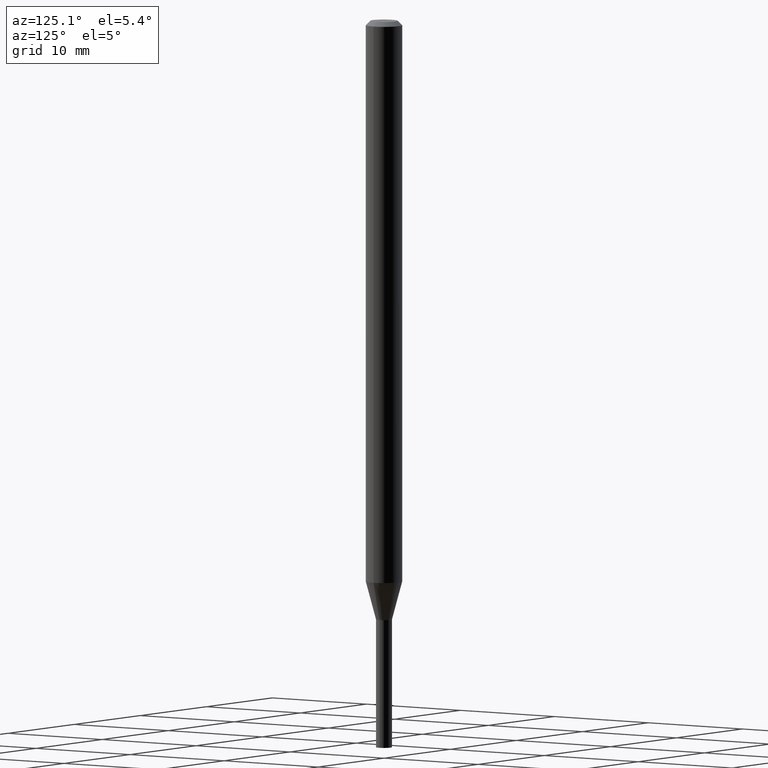
[diagram: clean part render]
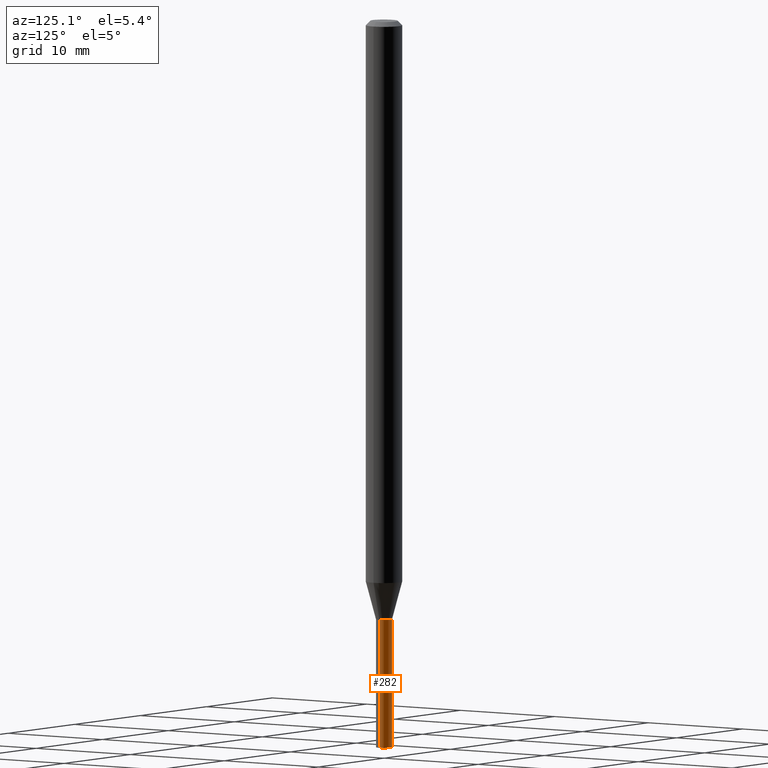
[diagram: same view with one face highlighted and labeled with its STEP entity id]
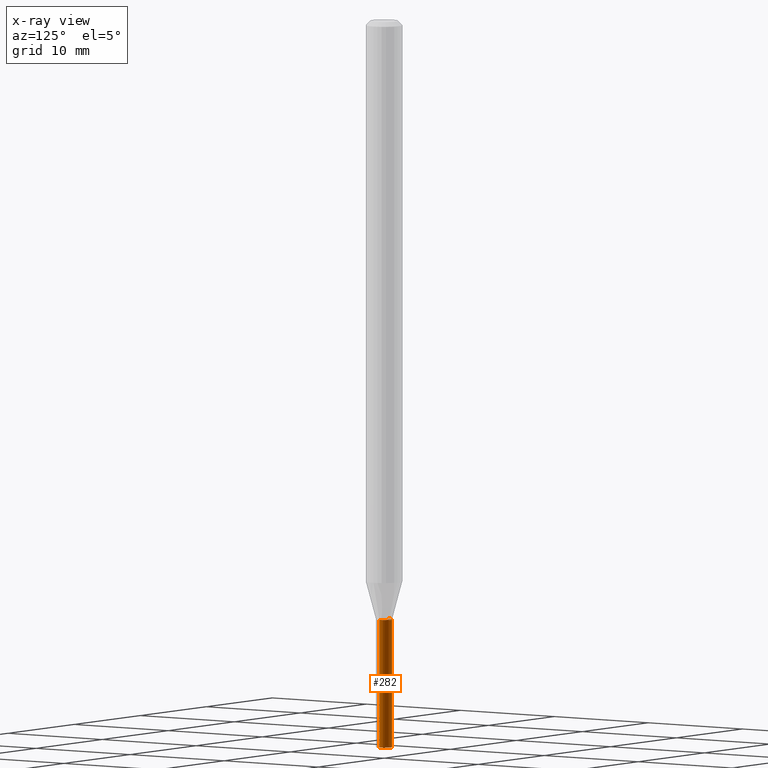
[diagram: x-ray of the same camera — body ghosted, the highlighted face saturated]
A machine part, auxiliary view. The second image highlights one B-rep face of the part: STEP entity #282.
The next image is the same camera in x-ray: the body ghosted, the highlighted face saturated — about 0% of this face is hidden behind the body in this view.
In plain terms, the highlighted cylindrical surface (edge-blend (fillet) strip) has radius 0.6985 mm, axis along (-0, 0, 1).
Its self-contained STEP definition (entity closure, byte-faithful):
#5 = EDGE_CURVE ( 'NONE', #119, #183, #333, .T. ) ;
#10 = CARTESIAN_POINT ( 'NONE',  ( 0.02750000000000000014, -1.920314736363723444E-16, 1.340948613343882413E-30 ) ) ;
#14 = CARTESIAN_POINT ( 'NONE',  ( -0.02750000000000000014, -7.765178200228343699E-15, -2.500000000000000000 ) ) ;
#22 = FACE_OUTER_BOUND ( 'NONE', #153, .T. ) ;
#32 = ORIENTED_EDGE ( 'NONE', *, *, #436, .F. ) ;
#44 = DIRECTION ( 'NONE',  ( -2.445468806185136877E-29, 3.491481338843145188E-15, 1.000000000000000000 ) ) ;
#52 = CARTESIAN_POINT ( 'NONE',  ( 0.02750000000000000014, -7.384483031653253552E-15, -2.060000000000000053 ) ) ;
#56 = EDGE_CURVE ( 'NONE', #393, #268, #355, .T. ) ;
#65 = DIRECTION ( 'NONE',  ( -2.445468806185136597E-29, 3.491481338843145583E-15, 1.000000000000000000 ) ) ;
#92 = CIRCLE ( 'NONE', #343, 0.02750000000000000014 ) ;
#119 = VERTEX_POINT ( 'NONE', #278 ) ;
#122 = ORIENTED_EDGE ( 'NONE', *, *, #449, .T. ) ;
#128 = CARTESIAN_POINT ( 'NONE',  ( 5.037665740741381905E-29, -7.192451558016880271E-15, -2.060000000000000053 ) ) ;
#147 = VECTOR ( 'NONE', #44, 39.37007874015748143 ) ;
#153 = EDGE_LOOP ( 'NONE', ( #122, #261, #32, #179 ) ) ;
#158 = CARTESIAN_POINT ( 'NONE',  ( -0.02750000000000000014, -7.765178200228343699E-15, -2.060000000000000053 ) ) ;
#179 = ORIENTED_EDGE ( 'NONE', *, *, #5, .F. ) ;
#183 = VERTEX_POINT ( 'NONE', #52 ) ;
#203 = DIRECTION ( 'NONE',  ( -2.445468806185136877E-29, 3.491481338843145188E-15, 1.000000000000000000 ) ) ;
#213 = DIRECTION ( 'NONE',  ( 1.000000000000000000, -6.982962677686244622E-15, 0.000000000000000000 ) ) ;
#224 = AXIS2_PLACEMENT_3D ( 'NONE', #444, #342, #276 ) ;
#255 = DIRECTION ( 'NONE',  ( -2.445468806185136597E-29, 3.491481338843145583E-15, 1.000000000000000000 ) ) ;
#261 = ORIENTED_EDGE ( 'NONE', *, *, #56, .T. ) ;
#268 = VERTEX_POINT ( 'NONE', #158 ) ;
#276 = DIRECTION ( 'NONE',  ( 1.000000000000000000, -6.982962677686266711E-15, 4.876176775795935793E-29 ) ) ;
#278 = CARTESIAN_POINT ( 'NONE',  ( 0.02750000000000000014, -8.920734820744236646E-15, -2.500000000000000000 ) ) ;
#282 = ADVANCED_FACE ( 'NONE', ( #22 ), #307, .T. ) ;
#285 = CIRCLE ( 'NONE', #358, 0.02750000000000000014 ) ;
#307 = CYLINDRICAL_SURFACE ( 'NONE', #224, 0.02750000000000000014 ) ;
#333 = LINE ( 'NONE', #10, #147 ) ;
#342 = DIRECTION ( 'NONE',  ( -2.445468806185136597E-29, 3.491481338843145583E-15, 1.000000000000000000 ) ) ;
#343 = AXIS2_PLACEMENT_3D ( 'NONE', #128, #255, #385 ) ;
#355 = LINE ( 'NONE', #382, #423 ) ;
#358 = AXIS2_PLACEMENT_3D ( 'NONE', #392, #65, #213 ) ;
#382 = CARTESIAN_POINT ( 'NONE',  ( -0.02750000000000000014, 1.953992523340275521E-16, -1.352707149820099181E-30 ) ) ;
#385 = DIRECTION ( 'NONE',  ( 1.000000000000000000, -6.982962677686279332E-15, 0.000000000000000000 ) ) ;
#392 = CARTESIAN_POINT ( 'NONE',  ( 6.113672015462842613E-29, -8.728703347107864943E-15, -2.500000000000000000 ) ) ;
#393 = VERTEX_POINT ( 'NONE', #14 ) ;
#423 = VECTOR ( 'NONE', #203, 39.37007874015748143 ) ;
#436 = EDGE_CURVE ( 'NONE', #183, #268, #92, .T. ) ;
#444 = CARTESIAN_POINT ( 'NONE',  ( 0.000000000000000000, 0.000000000000000000, 0.000000000000000000 ) ) ;
#449 = EDGE_CURVE ( 'NONE', #119, #393, #285, .T. ) ;